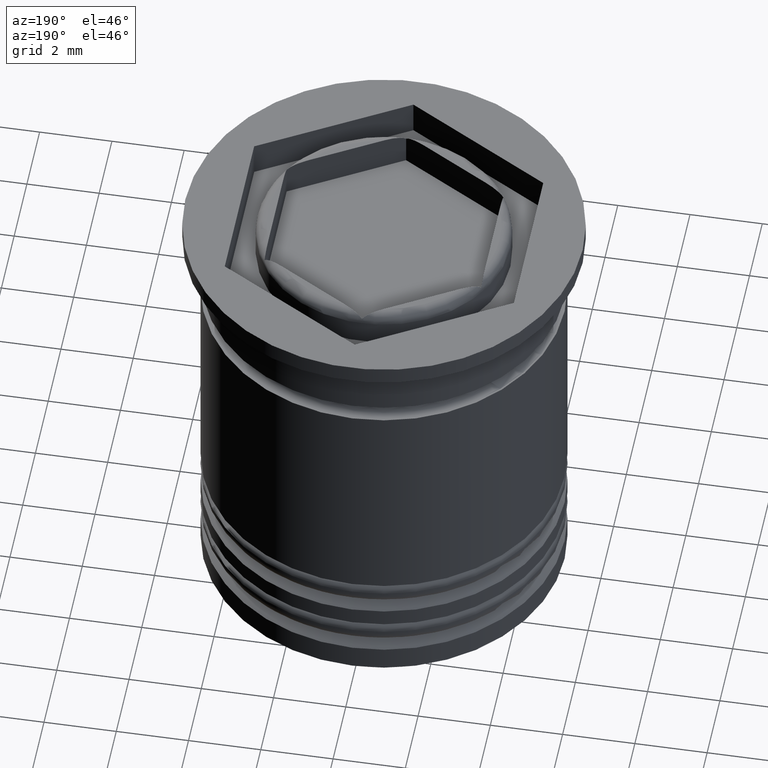
[diagram: clean part render]
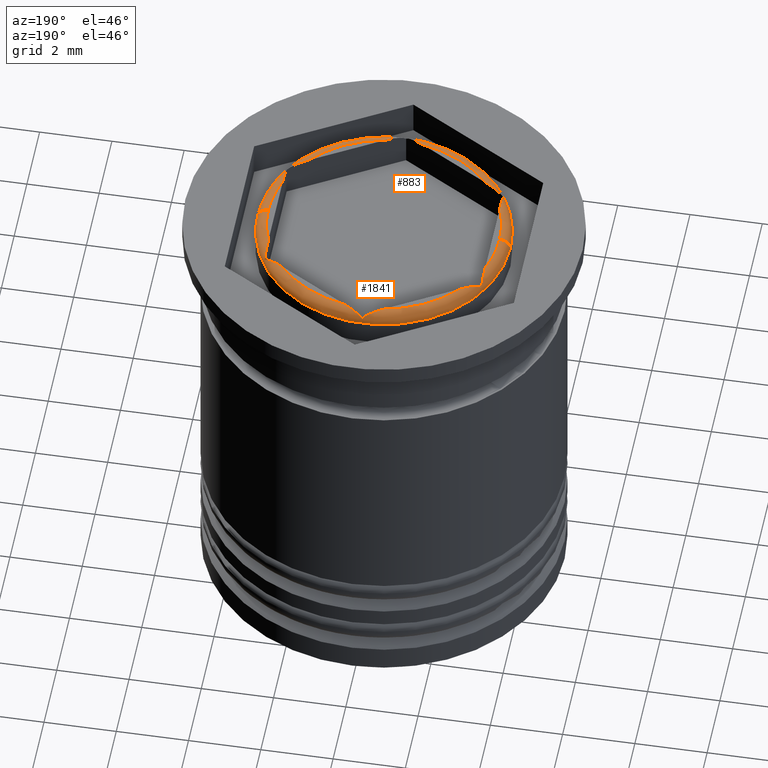
[diagram: same view with one multi-face feature highlighted, each face labeled with its STEP entity id]
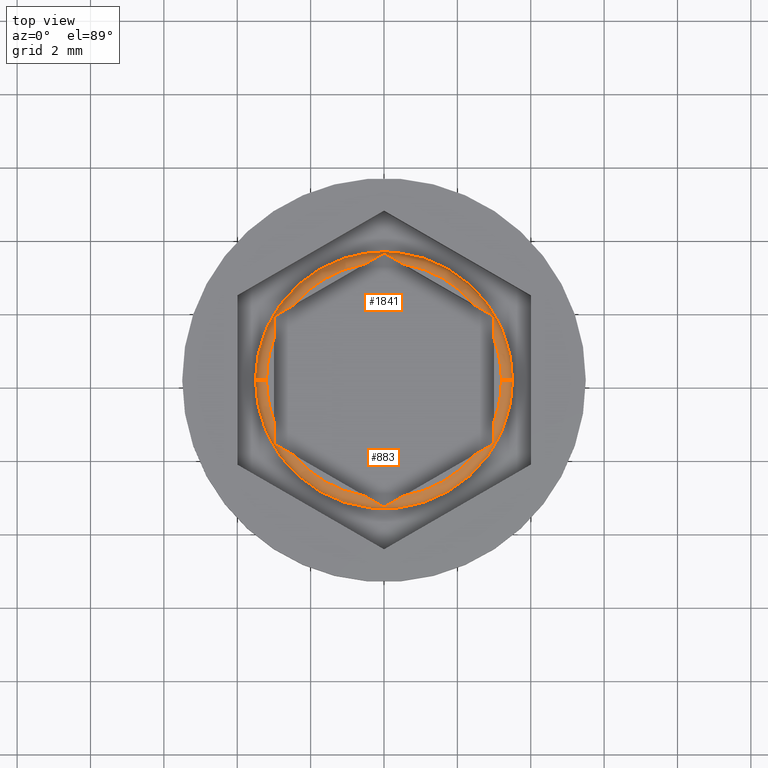
[diagram: same view with one multi-face feature highlighted, each face labeled with its STEP entity id]
A machine part, auxiliary view. The highlighted faces form ONE feature: a constant-radius fillet chain: 2 tangent blend faces with common blend radius 0.3 mm. The faces share edges in the B-rep.
A second angle (top view) of the same feature is appended — it is thin or edge-on in the first view.
Their STEP definitions:
[1] entity #883 (Torus):
#13 = AXIS2_PLACEMENT_3D ( 'NONE', #864, #63, #1161 ) ;
#38 = VERTEX_POINT ( 'NONE', #669 ) ;
#42 = CARTESIAN_POINT ( 'NONE',  ( 2.652575849777250916, -1.932636234222957938, -0.006590008935844975796 ) ) ;
#45 = DIRECTION ( 'NONE',  ( 1.000000000000000000, 0.000000000000000000, 0.000000000000000000 ) ) ;
#52 = VERTEX_POINT ( 'NONE', #677 ) ;
#60 = CARTESIAN_POINT ( 'NONE',  ( -2.168404344971008868E-16, -3.464101615137754830, -0.1576963216159549264 ) ) ;
#62 = B_SPLINE_CURVE_WITH_KNOTS ( 'NONE', 3,
 ( #1785, #82, #42, #1760, #1379, #553, #1005, #941 ),
 .UNSPECIFIED., .F., .F.,
 ( 4, 2, 2, 4 ),
 ( 1.239868400214633767E-20, 0.0003251077594065942384, 0.0004876616391098919810, 0.0006502155188131896694 ),
 .UNSPECIFIED. ) ;
#63 = DIRECTION ( 'NONE',  ( -0.000000000000000000, -0.000000000000000000, 1.000000000000000000 ) ) ;
#82 = CARTESIAN_POINT ( 'NONE',  ( 2.558504986048359964, -1.986948072719735281, -0.000000000000000000 ) ) ;
#86 = DIRECTION ( 'NONE',  ( -0.000000000000000000, -0.000000000000000000, 1.000000000000000000 ) ) ;
#91 = DIRECTION ( 'NONE',  ( 1.224646799147353207E-16, 1.000000000000000000, 0.000000000000000000 ) ) ;
#92 = VERTEX_POINT ( 'NONE', #885 ) ;
#113 = CARTESIAN_POINT ( 'NONE',  ( 3.000000000000000444, -1.331620664969456858, -0.006718191919573728889 ) ) ;
#118 = ORIENTED_EDGE ( 'NONE', *, *, #518, .F. ) ;
#122 = CARTESIAN_POINT ( 'NONE',  ( -3.000000000000000000, -1.732050807568877637, -0.1576963216159549264 ) ) ;
#127 = AXIS2_PLACEMENT_3D ( 'NONE', #1367, #765, #921 ) ;
#175 = VERTEX_POINT ( 'NONE', #344 ) ;
#177 = CARTESIAN_POINT ( 'NONE',  ( 3.200000000000000622, 0.000000000000000000, -0.2999999999999999334 ) ) ;
#199 = CARTESIAN_POINT ( 'NONE',  ( -3.000000000000000000, -1.732050807568877637, -0.1576963216159549264 ) ) ;
#209 = CARTESIAN_POINT ( 'NONE',  ( -0.1638830919324019142, -3.369483667894954237, -0.05305027761685780774 ) ) ;
#220 = EDGE_CURVE ( 'NONE', #1083, #919, #2064, .T. ) ;
#225 = B_SPLINE_CURVE_WITH_KNOTS ( 'NONE', 3,
 ( #301, #1474, #1589, #502, #1273, #1114, #1920, #199 ),
 .UNSPECIFIED., .F., .F.,
 ( 4, 2, 2, 4 ),
 ( 0.000000000000000000, 0.0003251077594065936421, 0.0004876616391098904631, 0.0006502155188131872841 ),
 .UNSPECIFIED. ) ;
#233 = AXIS2_PLACEMENT_3D ( 'NONE', #850, #91, #1490 ) ;
#234 = CARTESIAN_POINT ( 'NONE',  ( -2.168404344971008868E-16, -3.464101615137754830, -0.1576963216159549264 ) ) ;
#301 = CARTESIAN_POINT ( 'NONE',  ( -3.000000000000000000, -1.113552872566005769, 0.000000000000000000 ) ) ;
#308 = DIRECTION ( 'NONE',  ( 0.000000000000000000, -1.000000000000000000, 0.000000000000000000 ) ) ;
#344 = CARTESIAN_POINT ( 'NONE',  ( 2.464365076099294782, -2.041299775070314126, 0.000000000000000000 ) ) ;
#370 = CARTESIAN_POINT ( 'NONE',  ( 0.000000000000000000, 0.000000000000000000, -0.2999999999999999334 ) ) ;
#394 = CARTESIAN_POINT ( 'NONE',  ( 3.000000000000000444, -1.643839225324841058, -0.09422876642215761989 ) ) ;
#430 = VERTEX_POINT ( 'NONE', #1647 ) ;
#458 = ORIENTED_EDGE ( 'NONE', *, *, #942, .F. ) ;
#460 = CIRCLE ( 'NONE', #662, 3.500000000000000444 ) ;
#497 = CIRCLE ( 'NONE', #799, 0.2999999999999999334 ) ;
#502 = CARTESIAN_POINT ( 'NONE',  ( -3.000000000000000000, -1.490674398323927008, -0.03872414846243827508 ) ) ;
#518 = EDGE_CURVE ( 'NONE', #1452, #430, #1100, .T. ) ;
#528 = AXIS2_PLACEMENT_3D ( 'NONE', #370, #86, #45 ) ;
#545 = ORIENTED_EDGE ( 'NONE', *, *, #2069, .T. ) ;
#547 = EDGE_CURVE ( 'NONE', #92, #901, #1798, .T. ) ;
#549 = CARTESIAN_POINT ( 'NONE',  ( -2.558564483669223844, -1.986913721752314066, 8.548680020164027158E-16 ) ) ;
#553 = CARTESIAN_POINT ( 'NONE',  ( 2.923120587309834928, -1.776437157180684290, -0.09397729767315236848 ) ) ;
#587 = CARTESIAN_POINT ( 'NONE',  ( 3.000000000000000888, -1.222324979202006334, 7.858348168151771396E-16 ) ) ;
#593 = ORIENTED_EDGE ( 'NONE', *, *, #1581, .F. ) ;
#604 = VERTEX_POINT ( 'NONE', #122 ) ;
#625 = CARTESIAN_POINT ( 'NONE',  ( -2.923606528868643473, -1.776156598690896704, -0.09422876642215745335 ) ) ;
#662 = AXIS2_PLACEMENT_3D ( 'NONE', #1950, #982, #807 ) ;
#669 = CARTESIAN_POINT ( 'NONE',  ( -3.000000000000000000, -1.113552872566005769, 0.000000000000000000 ) ) ;
#677 = CARTESIAN_POINT ( 'NONE',  ( -3.500000000000000444, 0.000000000000000000, -0.2999999999999999334 ) ) ;
#687 = CARTESIAN_POINT ( 'NONE',  ( -0.07687941269016497492, -3.419715265525947512, -0.09397729767315245175 ) ) ;
#694 = CARTESIAN_POINT ( 'NONE',  ( 0.5356349239007043295, -3.154852647636318785, 0.000000000000000000 ) ) ;
#706 = CARTESIAN_POINT ( 'NONE',  ( 0.000000000000000000, 0.000000000000000000, 0.000000000000000000 ) ) ;
#724 = CARTESIAN_POINT ( 'NONE',  ( 0.4414355163307771002, -3.209238700954318624, 8.372920683608756880E-16 ) ) ;
#760 = CARTESIAN_POINT ( 'NONE',  ( 3.500000000000000444, 4.286263797015737088E-16, -0.2999999999999999334 ) ) ;
#765 = DIRECTION ( 'NONE',  ( -0.000000000000000000, -0.000000000000000000, 1.000000000000000000 ) ) ;
#778 = CARTESIAN_POINT ( 'NONE',  ( -2.965006714095214768, -1.752254190605834205, -0.1202008320270840647 ) ) ;
#799 = AXIS2_PLACEMENT_3D ( 'NONE', #177, #308, #1431 ) ;
#807 = DIRECTION ( 'NONE',  ( 1.000000000000000000, 0.000000000000000000, 0.000000000000000000 ) ) ;
#832 = EDGE_CURVE ( 'NONE', #38, #604, #225, .T. ) ;
#850 = CARTESIAN_POINT ( 'NONE',  ( -3.200000000000000622, 3.918869757271530953E-16, -0.2999999999999999334 ) ) ;
#864 = CARTESIAN_POINT ( 'NONE',  ( 0.000000000000000000, 0.000000000000000000, 0.000000000000000000 ) ) ;
#883 = ADVANCED_FACE ( 'NONE', ( #1686 ), #1153, .T. ) ;
#884 = EDGE_CURVE ( 'NONE', #901, #1452, #1616, .T. ) ;
#885 = CARTESIAN_POINT ( 'NONE',  ( -2.464365076099296559, -2.041299775070313238, 0.000000000000000000 ) ) ;
#895 = CARTESIAN_POINT ( 'NONE',  ( -0.5356349239007038854, -3.154852647636318785, 0.000000000000000000 ) ) ;
#901 = VERTEX_POINT ( 'NONE', #895 ) ;
#902 = CIRCLE ( 'NONE', #1801, 3.200000000000000622 ) ;
#919 = VERTEX_POINT ( 'NONE', #1014 ) ;
#921 = DIRECTION ( 'NONE',  ( 1.000000000000000000, 0.000000000000000000, 0.000000000000000000 ) ) ;
#930 = EDGE_CURVE ( 'NONE', #430, #175, #902, .T. ) ;
#941 = CARTESIAN_POINT ( 'NONE',  ( 3.000000000000000000, -1.732050807568878081, -0.1576963216159566472 ) ) ;
#942 = EDGE_CURVE ( 'NONE', #1097, #1083, #1723, .T. ) ;
#969 = VERTEX_POINT ( 'NONE', #1792 ) ;
#982 = DIRECTION ( 'NONE',  ( 0.000000000000000000, 0.000000000000000000, -1.000000000000000000 ) ) ;
#1004 = CARTESIAN_POINT ( 'NONE',  ( -0.4414950139516391481, -3.209204349986899629, -9.529120656610878815E-19 ) ) ;
#1005 = CARTESIAN_POINT ( 'NONE',  ( 2.965112866681731241, -1.752192903381435629, -0.1203145750809061498 ) ) ;
#1014 = CARTESIAN_POINT ( 'NONE',  ( 3.200000000000000622, 0.000000000000000000, 0.000000000000000000 ) ) ;
#1016 = CARTESIAN_POINT ( 'NONE',  ( 0.07639347113135665224, -3.419995824015736208, -0.09422876642215748111 ) ) ;
#1018 = ORIENTED_EDGE ( 'NONE', *, *, #930, .F. ) ;
#1022 = CARTESIAN_POINT ( 'NONE',  ( -2.464365076099296559, -2.041299775070313238, 0.000000000000000000 ) ) ;
#1032 = DIRECTION ( 'NONE',  ( -0.000000000000000000, -0.000000000000000000, 1.000000000000000000 ) ) ;
#1083 = VERTEX_POINT ( 'NONE', #1725 ) ;
#1097 = VERTEX_POINT ( 'NONE', #1249 ) ;
#1098 = CIRCLE ( 'NONE', #1159, 3.200000000000000622 ) ;
#1100 = B_SPLINE_CURVE_WITH_KNOTS ( 'NONE', 3,
 ( #1810, #1489, #1016, #1536, #1372, #1652, #724, #694 ),
 .UNSPECIFIED., .F., .F.,
 ( 4, 2, 2, 4 ),
 ( 2.825623115728058530E-19, 0.0001622701831771341900, 0.0003245403663542681090, 0.0006490807327085365433 ),
 .UNSPECIFIED. ) ;
#1114 = CARTESIAN_POINT ( 'NONE',  ( -3.000000000000000444, -1.643278108345263666, -0.09397729767315243787 ) ) ;
#1148 = ORIENTED_EDGE ( 'NONE', *, *, #1442, .F. ) ;
#1153 = TOROIDAL_SURFACE ( 'NONE', #528, 3.200000000000000622, 0.2999999999999999889 ) ;
#1159 = AXIS2_PLACEMENT_3D ( 'NONE', #1831, #1032, #1668 ) ;
#1161 = DIRECTION ( 'NONE',  ( 1.000000000000000000, 0.000000000000000000, 0.000000000000000000 ) ) ;
#1188 = CARTESIAN_POINT ( 'NONE',  ( 3.000000000000000000, -1.732050807568878081, -0.1576963216159566472 ) ) ;
#1249 = CARTESIAN_POINT ( 'NONE',  ( 3.000000000000000000, -1.732050807568878081, -0.1576963216159566472 ) ) ;
#1253 = CARTESIAN_POINT ( 'NONE',  ( -2.836041517829999137, -1.826712281385650449, -0.05299204151133360408 ) ) ;
#1273 = CARTESIAN_POINT ( 'NONE',  ( -3.000000000000000444, -1.542814913083276451, -0.05305027761685762039 ) ) ;
#1284 = B_SPLINE_CURVE_WITH_KNOTS ( 'NONE', 3,
 ( #1730, #778, #625, #1253, #1747, #1684, #549, #1022 ),
 .UNSPECIFIED., .F., .F.,
 ( 4, 2, 2, 4 ),
 ( 5.114171419281513821E-19, 0.0001622701831771340003, 0.0003245403663542674585, 0.0006490807327085356760 ),
 .UNSPECIFIED. ) ;
#1300 = ORIENTED_EDGE ( 'NONE', *, *, #547, .F. ) ;
#1322 = CARTESIAN_POINT ( 'NONE',  ( -0.3474241502227461420, -3.263516188483676306, -0.006590008935845222127 ) ) ;
#1333 = DIRECTION ( 'NONE',  ( -0.000000000000000000, -0.000000000000000000, 1.000000000000000000 ) ) ;
#1355 = EDGE_CURVE ( 'NONE', #1923, #52, #460, .T. ) ;
#1367 = CARTESIAN_POINT ( 'NONE',  ( 0.000000000000000000, 0.000000000000000000, 0.000000000000000000 ) ) ;
#1372 = CARTESIAN_POINT ( 'NONE',  ( 0.2090904032211533814, -3.343383214553053762, -0.03872241999869840967 ) ) ;
#1379 = CARTESIAN_POINT ( 'NONE',  ( 2.836116908067598086, -1.826668754811678452, -0.05305027761685754406 ) ) ;
#1386 = CARTESIAN_POINT ( 'NONE',  ( 3.000000000000000000, -1.490614006399477054, -0.03872241999869861784 ) ) ;
#1394 = EDGE_CURVE ( 'NONE', #52, #969, #1972, .T. ) ;
#1415 = EDGE_LOOP ( 'NONE', ( #1769, #1799, #545, #2039, #458, #2019, #1018, #118, #1549, #1300, #1148, #1701, #593 ) ) ;
#1431 = DIRECTION ( 'NONE',  ( 0.000000000000000000, 0.000000000000000000, -1.000000000000000000 ) ) ;
#1442 = EDGE_CURVE ( 'NONE', #604, #92, #1284, .T. ) ;
#1452 = VERTEX_POINT ( 'NONE', #234 ) ;
#1474 = CARTESIAN_POINT ( 'NONE',  ( -3.000000000000000000, -1.222256277267164126, -1.905824131322174993E-18 ) ) ;
#1489 = CARTESIAN_POINT ( 'NONE',  ( 0.03499328590478460038, -3.443898232100797596, -0.1202008320270839953 ) ) ;
#1490 = DIRECTION ( 'NONE',  ( -1.000000000000000000, 1.224646799147353207E-16, 0.000000000000000000 ) ) ;
#1496 = CARTESIAN_POINT ( 'NONE',  ( -0.5356349239007038854, -3.154852647636318785, 0.000000000000000000 ) ) ;
#1510 = CARTESIAN_POINT ( 'NONE',  ( -0.03488713331826946706, -3.443959519325197061, -0.1203145750809051784 ) ) ;
#1536 = CARTESIAN_POINT ( 'NONE',  ( 0.1639584821700009465, -3.369440141320983351, -0.05299204151133353469 ) ) ;
#1549 = ORIENTED_EDGE ( 'NONE', *, *, #884, .F. ) ;
#1581 = EDGE_CURVE ( 'NONE', #969, #38, #1098, .T. ) ;
#1589 = CARTESIAN_POINT ( 'NONE',  ( -3.000000000000000000, -1.330879954260717701, -0.006590008935845254219 ) ) ;
#1616 = B_SPLINE_CURVE_WITH_KNOTS ( 'NONE', 3,
 ( #1496, #1004, #1322, #1995, #209, #687, #1510, #60 ),
 .UNSPECIFIED., .F., .F.,
 ( 4, 2, 2, 4 ),
 ( 8.766002519126559474E-19, 0.0003251077594065934252, 0.0004876616391098899752, 0.0006502155188131865252 ),
 .UNSPECIFIED. ) ;
#1647 = CARTESIAN_POINT ( 'NONE',  ( 0.5356349239007043295, -3.154852647636318785, 0.000000000000000000 ) ) ;
#1652 = CARTESIAN_POINT ( 'NONE',  ( 0.3467826759321235852, -3.263886543838044663, -0.006718191919573667306 ) ) ;
#1668 = DIRECTION ( 'NONE',  ( 1.000000000000000000, 0.000000000000000000, 0.000000000000000000 ) ) ;
#1676 = CARTESIAN_POINT ( 'NONE',  ( 3.000000000000000444, -1.542727859935332901, -0.05299204151133359714 ) ) ;
#1684 = CARTESIAN_POINT ( 'NONE',  ( -2.653217324067876248, -1.932265878868588249, -0.006718191919573805217 ) ) ;
#1686 = FACE_OUTER_BOUND ( 'NONE', #1415, .T. ) ;
#1701 = ORIENTED_EDGE ( 'NONE', *, *, #832, .F. ) ;
#1723 = B_SPLINE_CURVE_WITH_KNOTS ( 'NONE', 3,
 ( #1188, #1839, #394, #1676, #1386, #113, #587, #2033 ),
 .UNSPECIFIED., .F., .F.,
 ( 4, 2, 2, 4 ),
 ( 2.424349759030540154E-19, 0.0001622701831771344340, 0.0003245403663542685969, 0.0006490807327085369770 ),
 .UNSPECIFIED. ) ;
#1725 = CARTESIAN_POINT ( 'NONE',  ( 3.000000000000000444, -1.113552872566005103, 0.000000000000000000 ) ) ;
#1730 = CARTESIAN_POINT ( 'NONE',  ( -3.000000000000000000, -1.732050807568877637, -0.1576963216159549264 ) ) ;
#1747 = CARTESIAN_POINT ( 'NONE',  ( -2.790909596778845980, -1.852769208153577596, -0.03872241999869845130 ) ) ;
#1760 = CARTESIAN_POINT ( 'NONE',  ( 2.790961897719602902, -1.852739012191353618, -0.03872414846243793507 ) ) ;
#1769 = ORIENTED_EDGE ( 'NONE', *, *, #1394, .F. ) ;
#1785 = CARTESIAN_POINT ( 'NONE',  ( 2.464365076099294782, -2.041299775070314126, 0.000000000000000000 ) ) ;
#1792 = CARTESIAN_POINT ( 'NONE',  ( -3.200000000000000622, 4.102566777143633281E-16, 0.000000000000000000 ) ) ;
#1798 = CIRCLE ( 'NONE', #13, 3.200000000000000622 ) ;
#1799 = ORIENTED_EDGE ( 'NONE', *, *, #1355, .F. ) ;
#1801 = AXIS2_PLACEMENT_3D ( 'NONE', #706, #1333, #1985 ) ;
#1810 = CARTESIAN_POINT ( 'NONE',  ( -2.168404344971008868E-16, -3.464101615137754830, -0.1576963216159549264 ) ) ;
#1831 = CARTESIAN_POINT ( 'NONE',  ( 0.000000000000000000, 0.000000000000000000, 0.000000000000000000 ) ) ;
#1839 = CARTESIAN_POINT ( 'NONE',  ( 2.999999999999999556, -1.691644041494964057, -0.1202008320270846059 ) ) ;
#1845 = EDGE_CURVE ( 'NONE', #175, #1097, #62, .T. ) ;
#1920 = CARTESIAN_POINT ( 'NONE',  ( -3.000000000000000444, -1.691766615943763430, -0.1203145750809054837 ) ) ;
#1923 = VERTEX_POINT ( 'NONE', #760 ) ;
#1950 = CARTESIAN_POINT ( 'NONE',  ( 0.000000000000000000, 0.000000000000000000, -0.2999999999999999334 ) ) ;
#1972 = CIRCLE ( 'NONE', #233, 0.2999999999999999334 ) ;
#1985 = DIRECTION ( 'NONE',  ( 1.000000000000000000, 0.000000000000000000, 0.000000000000000000 ) ) ;
#1995 = CARTESIAN_POINT ( 'NONE',  ( -0.2090381022803962097, -3.343413410515279516, -0.03872414846243828201 ) ) ;
#2019 = ORIENTED_EDGE ( 'NONE', *, *, #1845, .F. ) ;
#2033 = CARTESIAN_POINT ( 'NONE',  ( 3.000000000000000444, -1.113552872566005103, 0.000000000000000000 ) ) ;
#2039 = ORIENTED_EDGE ( 'NONE', *, *, #220, .F. ) ;
#2064 = CIRCLE ( 'NONE', #127, 3.200000000000000622 ) ;
#2069 = EDGE_CURVE ( 'NONE', #1923, #919, #497, .T. ) ;
[2] entity #1841 (Torus):
#6 = EDGE_CURVE ( 'NONE', #52, #1923, #1422, .T. ) ;
#52 = VERTEX_POINT ( 'NONE', #677 ) ;
#91 = DIRECTION ( 'NONE',  ( 1.224646799147353207E-16, 1.000000000000000000, 0.000000000000000000 ) ) ;
#111 = CARTESIAN_POINT ( 'NONE',  ( -2.168404344971008868E-16, 3.464101615137754830, -0.1576963216159549264 ) ) ;
#117 = EDGE_CURVE ( 'NONE', #919, #1377, #1453, .T. ) ;
#124 = CARTESIAN_POINT ( 'NONE',  ( 0.4414950139516400918, 3.209204349986899185, -0.000000000000000000 ) ) ;
#138 = CARTESIAN_POINT ( 'NONE',  ( 0.03488713331826957115, 3.443959519325197949, -0.1203145750809056364 ) ) ;
#147 = ORIENTED_EDGE ( 'NONE', *, *, #561, .F. ) ;
#153 = CARTESIAN_POINT ( 'NONE',  ( -2.464365076099295671, 2.041299775070314126, 0.000000000000000000 ) ) ;
#167 = DIRECTION ( 'NONE',  ( 1.000000000000000000, 0.000000000000000000, 0.000000000000000000 ) ) ;
#177 = CARTESIAN_POINT ( 'NONE',  ( 3.200000000000000622, 0.000000000000000000, -0.2999999999999999334 ) ) ;
#233 = AXIS2_PLACEMENT_3D ( 'NONE', #850, #91, #1490 ) ;
#248 = CARTESIAN_POINT ( 'NONE',  ( 2.558564483669223399, 1.986913721752314954, 8.261394678886942969E-16 ) ) ;
#297 = CARTESIAN_POINT ( 'NONE',  ( 0.3474241502227468081, 3.263516188483674973, -0.006590008935845257688 ) ) ;
#308 = DIRECTION ( 'NONE',  ( 0.000000000000000000, -1.000000000000000000, 0.000000000000000000 ) ) ;
#310 = CARTESIAN_POINT ( 'NONE',  ( -3.000000000000000000, 1.113552872566005769, 0.000000000000000000 ) ) ;
#325 = ORIENTED_EDGE ( 'NONE', *, *, #2069, .F. ) ;
#333 = ORIENTED_EDGE ( 'NONE', *, *, #6, .F. ) ;
#343 = CARTESIAN_POINT ( 'NONE',  ( -3.000000000000000444, 1.691644041494963835, -0.1202008320270840647 ) ) ;
#351 = VERTEX_POINT ( 'NONE', #658 ) ;
#352 = CARTESIAN_POINT ( 'NONE',  ( -3.000000000000000444, 1.643839225324840614, -0.09422876642215764764 ) ) ;
#361 = CARTESIAN_POINT ( 'NONE',  ( 3.000000000000001332, 1.113552872566002216, 0.000000000000000000 ) ) ;
#368 = B_SPLINE_CURVE_WITH_KNOTS ( 'NONE', 3,
 ( #408, #1667, #710, #557, #1830, #1989, #248, #1181 ),
 .UNSPECIFIED., .F., .F.,
 ( 4, 2, 2, 4 ),
 ( 1.355252715606880543E-19, 0.0001622701831771354369, 0.0003245403663542707111, 0.0006490807327085401212 ),
 .UNSPECIFIED. ) ;
#388 = CARTESIAN_POINT ( 'NONE',  ( -0.2090904032211537422, 3.343383214553053762, -0.03872241999869841661 ) ) ;
#402 = VERTEX_POINT ( 'NONE', #1638 ) ;
#408 = CARTESIAN_POINT ( 'NONE',  ( 3.000000000000001776, 1.732050807568877415, -0.1576963216159583958 ) ) ;
#439 = DIRECTION ( 'NONE',  ( 0.000000000000000000, 0.000000000000000000, -1.000000000000000000 ) ) ;
#462 = AXIS2_PLACEMENT_3D ( 'NONE', #2079, #1268, #473 ) ;
#473 = DIRECTION ( 'NONE',  ( 1.000000000000000000, 0.000000000000000000, 0.000000000000000000 ) ) ;
#479 = CARTESIAN_POINT ( 'NONE',  ( 0.000000000000000000, 0.000000000000000000, 0.000000000000000000 ) ) ;
#497 = CIRCLE ( 'NONE', #799, 0.2999999999999999334 ) ;
#520 = ORIENTED_EDGE ( 'NONE', *, *, #1983, .F. ) ;
#537 = CARTESIAN_POINT ( 'NONE',  ( -2.923120587309835372, 1.776437157180684512, -0.09397729767315254890 ) ) ;
#555 = CARTESIAN_POINT ( 'NONE',  ( 3.000000000000002220, 1.643278108345263666, -0.09397729767315378402 ) ) ;
#557 = CARTESIAN_POINT ( 'NONE',  ( 2.836041517830000469, 1.826712281385649339, -0.05299204151133455470 ) ) ;
#561 = EDGE_CURVE ( 'NONE', #1612, #402, #368, .T. ) ;
#584 = ORIENTED_EDGE ( 'NONE', *, *, #985, .F. ) ;
#585 = CARTESIAN_POINT ( 'NONE',  ( -2.652575849777251804, 1.932636234222957494, -0.006590008935844869110 ) ) ;
#605 = TOROIDAL_SURFACE ( 'NONE', #936, 3.200000000000000622, 0.2999999999999999889 ) ;
#607 = CARTESIAN_POINT ( 'NONE',  ( 0.07687941269016514145, 3.419715265525948844, -0.09397729767315267380 ) ) ;
#658 = CARTESIAN_POINT ( 'NONE',  ( -2.168404344971008868E-16, 3.464101615137754830, -0.1576963216159549264 ) ) ;
#666 = B_SPLINE_CURVE_WITH_KNOTS ( 'NONE', 3,
 ( #1378, #2021, #585, #1777, #1822, #537, #1168, #1615 ),
 .UNSPECIFIED., .F., .F.,
 ( 4, 2, 2, 4 ),
 ( 1.693691732042781777E-20, 0.0003251077594065942926, 0.0004876616391098914389, 0.0006502155188131885852 ),
 .UNSPECIFIED. ) ;
#672 = CARTESIAN_POINT ( 'NONE',  ( 3.000000000000002220, 1.490674398323925898, -0.03872414846243867059 ) ) ;
#673 = CARTESIAN_POINT ( 'NONE',  ( 3.000000000000001776, 1.732050807568877415, -0.1576963216159583958 ) ) ;
#677 = CARTESIAN_POINT ( 'NONE',  ( -3.500000000000000444, 0.000000000000000000, -0.2999999999999999334 ) ) ;
#682 = VERTEX_POINT ( 'NONE', #153 ) ;
#700 = B_SPLINE_CURVE_WITH_KNOTS ( 'NONE', 3,
 ( #361, #1179, #837, #672, #1006, #555, #1828, #1640 ),
 .UNSPECIFIED., .F., .F.,
 ( 4, 2, 2, 4 ),
 ( 0.000000000000000000, 0.0003251077594065961899, 0.0004876616391098942578, 0.0006502155188131923799 ),
 .UNSPECIFIED. ) ;
#710 = CARTESIAN_POINT ( 'NONE',  ( 2.923606528868645249, 1.776156598690896038, -0.09422876642215941012 ) ) ;
#735 = VERTEX_POINT ( 'NONE', #784 ) ;
#741 = CIRCLE ( 'NONE', #1262, 3.200000000000000622 ) ;
#760 = CARTESIAN_POINT ( 'NONE',  ( 3.500000000000000444, 4.286263797015737088E-16, -0.2999999999999999334 ) ) ;
#773 = CARTESIAN_POINT ( 'NONE',  ( -2.168404344971008868E-16, 3.464101615137754830, -0.1576963216159549264 ) ) ;
#784 = CARTESIAN_POINT ( 'NONE',  ( 0.5356349239007047736, 3.154852647636318341, 0.000000000000000000 ) ) ;
#788 = B_SPLINE_CURVE_WITH_KNOTS ( 'NONE', 3,
 ( #1732, #124, #297, #2038, #1235, #607, #138, #773 ),
 .UNSPECIFIED., .F., .F.,
 ( 4, 2, 2, 4 ),
 ( 7.842007300076290791E-19, 0.0003251077594065945636, 0.0004876616391098912220, 0.0006502155188131878262 ),
 .UNSPECIFIED. ) ;
#789 = AXIS2_PLACEMENT_3D ( 'NONE', #1320, #1961, #854 ) ;
#799 = AXIS2_PLACEMENT_3D ( 'NONE', #177, #308, #1431 ) ;
#812 = CARTESIAN_POINT ( 'NONE',  ( 0.000000000000000000, 0.000000000000000000, -0.2999999999999999334 ) ) ;
#815 = VERTEX_POINT ( 'NONE', #1410 ) ;
#837 = CARTESIAN_POINT ( 'NONE',  ( 3.000000000000000888, 1.330879954260715703, -0.006590008935845116309 ) ) ;
#850 = CARTESIAN_POINT ( 'NONE',  ( -3.200000000000000622, 3.918869757271530953E-16, -0.2999999999999999334 ) ) ;
#854 = DIRECTION ( 'NONE',  ( 1.000000000000000000, 0.000000000000000000, 0.000000000000000000 ) ) ;
#919 = VERTEX_POINT ( 'NONE', #1014 ) ;
#936 = AXIS2_PLACEMENT_3D ( 'NONE', #1648, #1868, #167 ) ;
#966 = CARTESIAN_POINT ( 'NONE',  ( -0.5356349239007045515, 3.154852647636318785, 0.000000000000000000 ) ) ;
#969 = VERTEX_POINT ( 'NONE', #1792 ) ;
#985 = EDGE_CURVE ( 'NONE', #1377, #1612, #700, .T. ) ;
#1006 = CARTESIAN_POINT ( 'NONE',  ( 3.000000000000001776, 1.542814913083275785, -0.05305027761685811999 ) ) ;
#1014 = CARTESIAN_POINT ( 'NONE',  ( 3.200000000000000622, 0.000000000000000000, 0.000000000000000000 ) ) ;
#1019 = CARTESIAN_POINT ( 'NONE',  ( -2.999999999999999556, 1.222324979202006778, 8.752203214434849909E-16 ) ) ;
#1034 = DIRECTION ( 'NONE',  ( 1.000000000000000000, 0.000000000000000000, 0.000000000000000000 ) ) ;
#1038 = CIRCLE ( 'NONE', #462, 3.200000000000000622 ) ;
#1046 = CARTESIAN_POINT ( 'NONE',  ( -0.3467826759321240293, 3.263886543838044663, -0.006718191919573663837 ) ) ;
#1080 = DIRECTION ( 'NONE',  ( 1.000000000000000000, 0.000000000000000000, 0.000000000000000000 ) ) ;
#1092 = B_SPLINE_CURVE_WITH_KNOTS ( 'NONE', 3,
 ( #111, #1506, #2013, #1198, #388, #1046, #1184, #1833 ),
 .UNSPECIFIED., .F., .F.,
 ( 4, 2, 2, 4 ),
 ( 2.825623115728058530E-19, 0.0001622701831771341629, 0.0003245403663542680548, 0.0006490807327085364349 ),
 .UNSPECIFIED. ) ;
#1122 = EDGE_CURVE ( 'NONE', #815, #1958, #1974, .T. ) ;
#1165 = CARTESIAN_POINT ( 'NONE',  ( -3.000000000000000888, 1.490614006399477720, -0.03872241999869861090 ) ) ;
#1168 = CARTESIAN_POINT ( 'NONE',  ( -2.965112866681730797, 1.752192903381435851, -0.1203145750809058168 ) ) ;
#1179 = CARTESIAN_POINT ( 'NONE',  ( 3.000000000000000888, 1.222256277267161462, -9.529120656610874963E-19 ) ) ;
#1181 = CARTESIAN_POINT ( 'NONE',  ( 2.464365076099294782, 2.041299775070314571, 0.000000000000000000 ) ) ;
#1184 = CARTESIAN_POINT ( 'NONE',  ( -0.4414355163307774332, 3.209238700954318624, 8.506328372801310169E-16 ) ) ;
#1198 = CARTESIAN_POINT ( 'NONE',  ( -0.1639584821700014183, 3.369440141320983351, -0.05299204151133352775 ) ) ;
#1235 = CARTESIAN_POINT ( 'NONE',  ( 0.1638830919324023860, 3.369483667894954682, -0.05305027761685784243 ) ) ;
#1259 = ORIENTED_EDGE ( 'NONE', *, *, #1669, .F. ) ;
#1262 = AXIS2_PLACEMENT_3D ( 'NONE', #479, #1423, #1773 ) ;
#1268 = DIRECTION ( 'NONE',  ( -0.000000000000000000, -0.000000000000000000, 1.000000000000000000 ) ) ;
#1312 = ORIENTED_EDGE ( 'NONE', *, *, #1409, .F. ) ;
#1320 = CARTESIAN_POINT ( 'NONE',  ( 0.000000000000000000, 0.000000000000000000, 0.000000000000000000 ) ) ;
#1339 = CARTESIAN_POINT ( 'NONE',  ( 0.000000000000000000, 0.000000000000000000, 0.000000000000000000 ) ) ;
#1363 = VERTEX_POINT ( 'NONE', #966 ) ;
#1377 = VERTEX_POINT ( 'NONE', #1955 ) ;
#1378 = CARTESIAN_POINT ( 'NONE',  ( -2.464365076099295671, 2.041299775070314126, 0.000000000000000000 ) ) ;
#1394 = EDGE_CURVE ( 'NONE', #52, #969, #1972, .T. ) ;
#1409 = EDGE_CURVE ( 'NONE', #1958, #969, #1460, .T. ) ;
#1410 = CARTESIAN_POINT ( 'NONE',  ( -3.000000000000000000, 1.732050807568877859, -0.1576963216159549264 ) ) ;
#1422 = CIRCLE ( 'NONE', #1726, 3.500000000000000444 ) ;
#1423 = DIRECTION ( 'NONE',  ( -0.000000000000000000, -0.000000000000000000, 1.000000000000000000 ) ) ;
#1431 = DIRECTION ( 'NONE',  ( 0.000000000000000000, 0.000000000000000000, -1.000000000000000000 ) ) ;
#1453 = CIRCLE ( 'NONE', #789, 3.200000000000000622 ) ;
#1460 = CIRCLE ( 'NONE', #1498, 3.200000000000000622 ) ;
#1468 = CARTESIAN_POINT ( 'NONE',  ( -3.000000000000000444, 1.542727859935333123, -0.05299204151133367346 ) ) ;
#1490 = DIRECTION ( 'NONE',  ( -1.000000000000000000, 1.224646799147353207E-16, 0.000000000000000000 ) ) ;
#1498 = AXIS2_PLACEMENT_3D ( 'NONE', #1339, #1991, #1034 ) ;
#1506 = CARTESIAN_POINT ( 'NONE',  ( -0.03499328590478502365, 3.443898232100797596, -0.1202008320270840092 ) ) ;
#1529 = ORIENTED_EDGE ( 'NONE', *, *, #1691, .F. ) ;
#1612 = VERTEX_POINT ( 'NONE', #673 ) ;
#1615 = CARTESIAN_POINT ( 'NONE',  ( -3.000000000000000000, 1.732050807568877859, -0.1576963216159549264 ) ) ;
#1621 = ORIENTED_EDGE ( 'NONE', *, *, #1394, .T. ) ;
#1633 = ORIENTED_EDGE ( 'NONE', *, *, #1814, .F. ) ;
#1638 = CARTESIAN_POINT ( 'NONE',  ( 2.464365076099294782, 2.041299775070314571, 0.000000000000000000 ) ) ;
#1640 = CARTESIAN_POINT ( 'NONE',  ( 3.000000000000001776, 1.732050807568877415, -0.1576963216159583958 ) ) ;
#1642 = ORIENTED_EDGE ( 'NONE', *, *, #117, .F. ) ;
#1644 = EDGE_LOOP ( 'NONE', ( #333, #1621, #1312, #1681, #1529, #1633, #1259, #1754, #520, #147, #584, #1642, #325 ) ) ;
#1648 = CARTESIAN_POINT ( 'NONE',  ( 0.000000000000000000, 0.000000000000000000, -0.2999999999999999334 ) ) ;
#1667 = CARTESIAN_POINT ( 'NONE',  ( 2.965006714095217877, 1.752254190605834872, -0.1202008320270856884 ) ) ;
#1669 = EDGE_CURVE ( 'NONE', #351, #1363, #1092, .T. ) ;
#1681 = ORIENTED_EDGE ( 'NONE', *, *, #1122, .F. ) ;
#1691 = EDGE_CURVE ( 'NONE', #682, #815, #666, .T. ) ;
#1726 = AXIS2_PLACEMENT_3D ( 'NONE', #812, #439, #1080 ) ;
#1732 = CARTESIAN_POINT ( 'NONE',  ( 0.5356349239007047736, 3.154852647636318341, 0.000000000000000000 ) ) ;
#1754 = ORIENTED_EDGE ( 'NONE', *, *, #1952, .F. ) ;
#1767 = CARTESIAN_POINT ( 'NONE',  ( -3.000000000000000000, 1.732050807568877859, -0.1576963216159549264 ) ) ;
#1773 = DIRECTION ( 'NONE',  ( 1.000000000000000000, 0.000000000000000000, 0.000000000000000000 ) ) ;
#1777 = CARTESIAN_POINT ( 'NONE',  ( -2.790961897719603346, 1.852739012191353840, -0.03872414846243798364 ) ) ;
#1792 = CARTESIAN_POINT ( 'NONE',  ( -3.200000000000000622, 4.102566777143633281E-16, 0.000000000000000000 ) ) ;
#1814 = EDGE_CURVE ( 'NONE', #1363, #682, #1038, .T. ) ;
#1821 = CARTESIAN_POINT ( 'NONE',  ( -2.999999999999999556, 1.331620664969456858, -0.006718191919573731491 ) ) ;
#1822 = CARTESIAN_POINT ( 'NONE',  ( -2.836116908067597198, 1.826668754811678452, -0.05305027761685764814 ) ) ;
#1828 = CARTESIAN_POINT ( 'NONE',  ( 3.000000000000001776, 1.691766615943763430, -0.1203145750809069270 ) ) ;
#1830 = CARTESIAN_POINT ( 'NONE',  ( 2.790909596778847757, 1.852769208153578040, -0.03872241999869915213 ) ) ;
#1833 = CARTESIAN_POINT ( 'NONE',  ( -0.5356349239007045515, 3.154852647636318785, 0.000000000000000000 ) ) ;
#1841 = ADVANCED_FACE ( 'NONE', ( #1997 ), #605, .T. ) ;
#1868 = DIRECTION ( 'NONE',  ( -0.000000000000000000, -0.000000000000000000, 1.000000000000000000 ) ) ;
#1923 = VERTEX_POINT ( 'NONE', #760 ) ;
#1952 = EDGE_CURVE ( 'NONE', #735, #351, #788, .T. ) ;
#1955 = CARTESIAN_POINT ( 'NONE',  ( 3.000000000000001332, 1.113552872566002216, 0.000000000000000000 ) ) ;
#1958 = VERTEX_POINT ( 'NONE', #2050 ) ;
#1961 = DIRECTION ( 'NONE',  ( -0.000000000000000000, -0.000000000000000000, 1.000000000000000000 ) ) ;
#1972 = CIRCLE ( 'NONE', #233, 0.2999999999999999334 ) ;
#1974 = B_SPLINE_CURVE_WITH_KNOTS ( 'NONE', 3,
 ( #1767, #343, #352, #1468, #1165, #1821, #1019, #310 ),
 .UNSPECIFIED., .F., .F.,
 ( 4, 2, 2, 4 ),
 ( 2.710505431213761085E-19, 0.0001622701831771344069, 0.0003245403663542685427, 0.0006490807327085360012 ),
 .UNSPECIFIED. ) ;
#1983 = EDGE_CURVE ( 'NONE', #402, #735, #741, .T. ) ;
#1989 = CARTESIAN_POINT ( 'NONE',  ( 2.653217324067877136, 1.932265878868588027, -0.006718191919573857258 ) ) ;
#1991 = DIRECTION ( 'NONE',  ( -0.000000000000000000, -0.000000000000000000, 1.000000000000000000 ) ) ;
#1997 = FACE_OUTER_BOUND ( 'NONE', #1644, .T. ) ;
#2013 = CARTESIAN_POINT ( 'NONE',  ( -0.07639347113135709633, 3.419995824015736208, -0.09422876642215748111 ) ) ;
#2021 = CARTESIAN_POINT ( 'NONE',  ( -2.558504986048359964, 1.986948072719734837, -1.905824131322174993E-18 ) ) ;
#2038 = CARTESIAN_POINT ( 'NONE',  ( 0.2090381022803965150, 3.343413410515278628, -0.03872414846243826814 ) ) ;
#2050 = CARTESIAN_POINT ( 'NONE',  ( -3.000000000000000000, 1.113552872566005769, 0.000000000000000000 ) ) ;
#2069 = EDGE_CURVE ( 'NONE', #1923, #919, #497, .T. ) ;
#2079 = CARTESIAN_POINT ( 'NONE',  ( 0.000000000000000000, 0.000000000000000000, 0.000000000000000000 ) ) ;